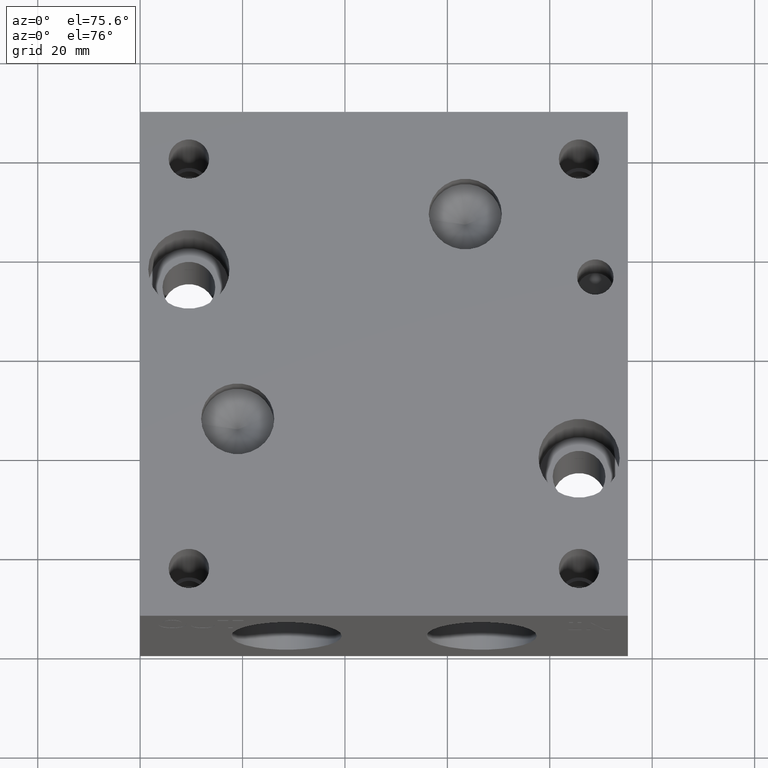
[diagram: clean part render]
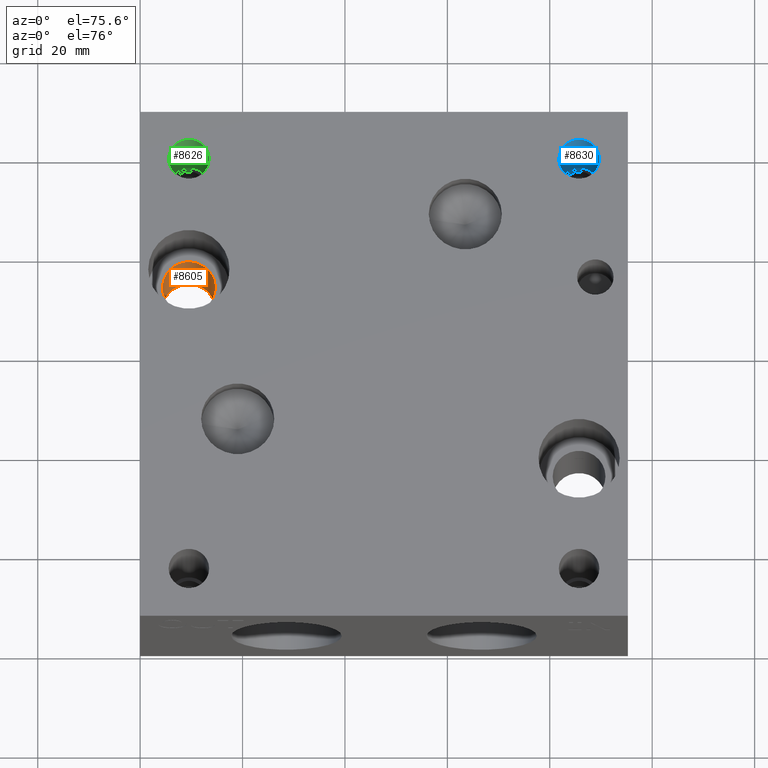
[diagram: same view with three faces highlighted in distinct colors, each labeled with its STEP entity id]
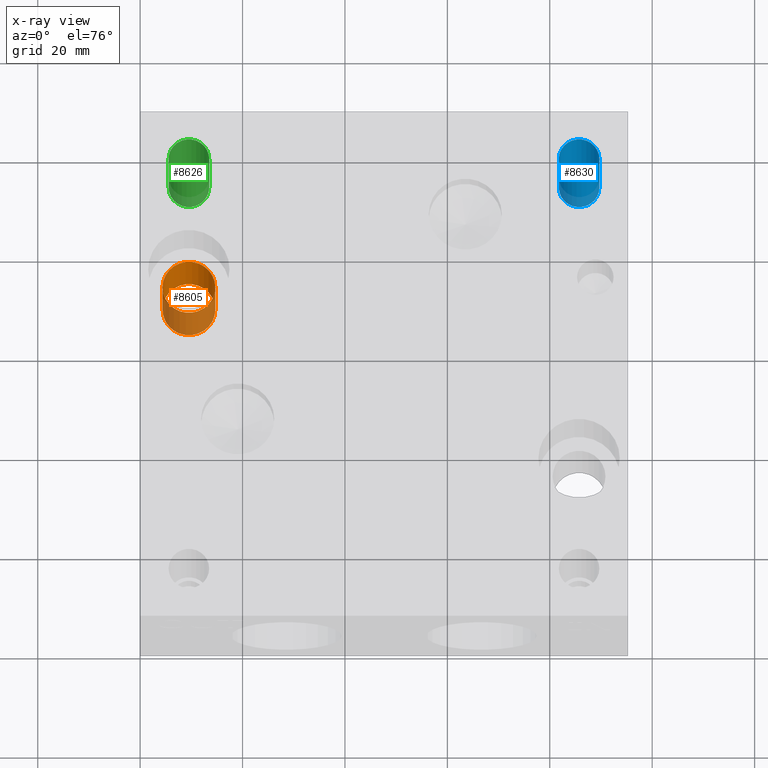
[diagram: x-ray of the same camera — body ghosted, the three highlighted faces saturated]
A machine part, auxiliary view with three faces highlighted in distinct colors.
The next image is the same camera in x-ray (body ghosted, the three faces saturated) — at least one of them is partly hidden behind the body in this view.
Their STEP definitions:

[orange] entity #8605 — the highlighted cylindrical surface (bore or boss wall) has radius 5.1562 mm, axis along (0, 0, 1).
#26=CYLINDRICAL_SURFACE('',#8931,5.1562);
#55=CIRCLE('',#8928,5.1562);
#57=CIRCLE('',#8932,5.1562);
#831=FACE_OUTER_BOUND('',#1305,.T.);
#1305=EDGE_LOOP('',(#7495,#7496,#7497,#7498));
#2171=LINE('',#14644,#3013);
#3013=VECTOR('',#10385,5.1562);
#4060=VERTEX_POINT('',#14636);
#4062=VERTEX_POINT('',#14643);
#5226=EDGE_CURVE('',#4060,#4060,#55,.T.);
#5229=EDGE_CURVE('',#4060,#4062,#2171,.T.);
#5230=EDGE_CURVE('',#4062,#4062,#57,.T.);
#7495=ORIENTED_EDGE('',*,*,#5226,.T.);
#7496=ORIENTED_EDGE('',*,*,#5229,.T.);
#7497=ORIENTED_EDGE('',*,*,#5230,.F.);
#7498=ORIENTED_EDGE('',*,*,#5229,.F.);
#8605=ADVANCED_FACE('',(#831),#26,.F.);
#8928=AXIS2_PLACEMENT_3D('',#14637,#10376,#10377);
#8931=AXIS2_PLACEMENT_3D('',#14642,#10383,#10384);
#8932=AXIS2_PLACEMENT_3D('',#14645,#10386,#10387);
#10376=DIRECTION('center_axis',(0.,0.,1.));
#10377=DIRECTION('ref_axis',(1.,0.,0.));
#10383=DIRECTION('center_axis',(0.,0.,1.));
#10384=DIRECTION('ref_axis',(1.,0.,0.));
#10385=DIRECTION('',(0.,0.,-1.));
#10386=DIRECTION('center_axis',(0.,0.,1.));
#10387=DIRECTION('ref_axis',(1.,0.,0.));
#14636=CARTESIAN_POINT('',(4.3688,69.85,17.526));
#14637=CARTESIAN_POINT('Origin',(9.525,69.85,17.526));
#14642=CARTESIAN_POINT('Origin',(9.525,69.85,-111.089717865865));
#14643=CARTESIAN_POINT('',(4.3688,69.85,0.));
#14644=CARTESIAN_POINT('',(4.3688,69.85,-111.089717865865));
#14645=CARTESIAN_POINT('Origin',(9.525,69.85,0.));

[blue] entity #8630 — the highlighted cylindrical surface (bore or boss wall) has radius 3.9624 mm, axis along (0, 0, 1).
#38=CYLINDRICAL_SURFACE('',#8998,3.9624);
#96=CIRCLE('',#8995,3.9624);
#97=CIRCLE('',#8996,3.9624);
#99=CIRCLE('',#8999,3.9624);
#100=CIRCLE('',#9000,3.9624);
#856=FACE_OUTER_BOUND('',#1335,.T.);
#1335=EDGE_LOOP('',(#7608,#7609,#7610,#7611,#7612,#7613));
#2191=LINE('',#14784,#3033);
#3033=VECTOR('',#10543,3.9624);
#4109=VERTEX_POINT('',#14773);
#4110=VERTEX_POINT('',#14774);
#4112=VERTEX_POINT('',#14780);
#4113=VERTEX_POINT('',#14781);
#5288=EDGE_CURVE('',#4109,#4110,#96,.T.);
#5289=EDGE_CURVE('',#4110,#4109,#97,.T.);
#5291=EDGE_CURVE('',#4112,#4113,#99,.T.);
#5292=EDGE_CURVE('',#4113,#4112,#100,.T.);
#5293=EDGE_CURVE('',#4113,#4110,#2191,.T.);
#7608=ORIENTED_EDGE('',*,*,#5291,.F.);
#7609=ORIENTED_EDGE('',*,*,#5292,.F.);
#7610=ORIENTED_EDGE('',*,*,#5293,.T.);
#7611=ORIENTED_EDGE('',*,*,#5288,.F.);
#7612=ORIENTED_EDGE('',*,*,#5289,.F.);
#7613=ORIENTED_EDGE('',*,*,#5293,.F.);
#8630=ADVANCED_FACE('',(#856),#38,.F.);
#8995=AXIS2_PLACEMENT_3D('',#14775,#10531,#10532);
#8996=AXIS2_PLACEMENT_3D('',#14776,#10533,#10534);
#8998=AXIS2_PLACEMENT_3D('',#14779,#10537,#10538);
#8999=AXIS2_PLACEMENT_3D('',#14782,#10539,#10540);
#9000=AXIS2_PLACEMENT_3D('',#14783,#10541,#10542);
#10531=DIRECTION('center_axis',(0.,0.,1.));
#10532=DIRECTION('ref_axis',(1.,0.,0.));
#10533=DIRECTION('center_axis',(0.,0.,1.));
#10534=DIRECTION('ref_axis',(1.,0.,0.));
#10537=DIRECTION('center_axis',(0.,0.,1.));
#10538=DIRECTION('ref_axis',(1.,0.,0.));
#10539=DIRECTION('center_axis',(0.,0.,-1.));
#10540=DIRECTION('ref_axis',(1.,0.,0.));
#10541=DIRECTION('center_axis',(0.,0.,-1.));
#10542=DIRECTION('ref_axis',(1.,0.,0.));
#10543=DIRECTION('',(0.,0.,-1.));
#14773=CARTESIAN_POINT('',(89.6874,92.075,9.398));
#14774=CARTESIAN_POINT('',(81.7626,92.075,9.398));
#14775=CARTESIAN_POINT('Origin',(85.725,92.075,9.398));
#14776=CARTESIAN_POINT('Origin',(85.725,92.075,9.398));
#14779=CARTESIAN_POINT('Origin',(85.725,92.075,20.574));
#14780=CARTESIAN_POINT('',(89.6874,92.075,31.75));
#14781=CARTESIAN_POINT('',(81.7626,92.075,31.75));
#14782=CARTESIAN_POINT('Origin',(85.725,92.075,31.75));
#14783=CARTESIAN_POINT('Origin',(85.725,92.075,31.75));
#14784=CARTESIAN_POINT('',(81.7626,92.075,20.574));

[green] entity #8626 — the highlighted cylindrical surface (bore or boss wall) has radius 3.9624 mm, axis along (0, 0, 1).
#36=CYLINDRICAL_SURFACE('',#8987,3.9624);
#89=CIRCLE('',#8984,3.9624);
#90=CIRCLE('',#8985,3.9624);
#92=CIRCLE('',#8988,3.9624);
#93=CIRCLE('',#8989,3.9624);
#852=FACE_OUTER_BOUND('',#1330,.T.);
#1330=EDGE_LOOP('',(#7590,#7591,#7592,#7593,#7594,#7595));
#2188=LINE('',#14762,#3030);
#3030=VECTOR('',#10518,3.9624);
#4101=VERTEX_POINT('',#14751);
#4102=VERTEX_POINT('',#14752);
#4104=VERTEX_POINT('',#14758);
#4105=VERTEX_POINT('',#14759);
#5278=EDGE_CURVE('',#4101,#4102,#89,.T.);
#5279=EDGE_CURVE('',#4102,#4101,#90,.T.);
#5281=EDGE_CURVE('',#4104,#4105,#92,.T.);
#5282=EDGE_CURVE('',#4105,#4104,#93,.T.);
#5283=EDGE_CURVE('',#4105,#4102,#2188,.T.);
#7590=ORIENTED_EDGE('',*,*,#5281,.F.);
#7591=ORIENTED_EDGE('',*,*,#5282,.F.);
#7592=ORIENTED_EDGE('',*,*,#5283,.T.);
#7593=ORIENTED_EDGE('',*,*,#5278,.F.);
#7594=ORIENTED_EDGE('',*,*,#5279,.F.);
#7595=ORIENTED_EDGE('',*,*,#5283,.F.);
#8626=ADVANCED_FACE('',(#852),#36,.F.);
#8984=AXIS2_PLACEMENT_3D('',#14753,#10506,#10507);
#8985=AXIS2_PLACEMENT_3D('',#14754,#10508,#10509);
#8987=AXIS2_PLACEMENT_3D('',#14757,#10512,#10513);
#8988=AXIS2_PLACEMENT_3D('',#14760,#10514,#10515);
#8989=AXIS2_PLACEMENT_3D('',#14761,#10516,#10517);
#10506=DIRECTION('center_axis',(0.,0.,1.));
#10507=DIRECTION('ref_axis',(1.,0.,0.));
#10508=DIRECTION('center_axis',(0.,0.,1.));
#10509=DIRECTION('ref_axis',(1.,0.,0.));
#10512=DIRECTION('center_axis',(0.,0.,1.));
#10513=DIRECTION('ref_axis',(1.,0.,0.));
#10514=DIRECTION('center_axis',(0.,0.,-1.));
#10515=DIRECTION('ref_axis',(1.,0.,0.));
#10516=DIRECTION('center_axis',(0.,0.,-1.));
#10517=DIRECTION('ref_axis',(1.,0.,0.));
#10518=DIRECTION('',(0.,0.,-1.));
#14751=CARTESIAN_POINT('',(13.4874,92.075,9.398));
#14752=CARTESIAN_POINT('',(5.5626,92.075,9.398));
#14753=CARTESIAN_POINT('Origin',(9.525,92.075,9.398));
#14754=CARTESIAN_POINT('Origin',(9.525,92.075,9.398));
#14757=CARTESIAN_POINT('Origin',(9.525,92.075,20.574));
#14758=CARTESIAN_POINT('',(13.4874,92.075,31.75));
#14759=CARTESIAN_POINT('',(5.5626,92.075,31.75));
#14760=CARTESIAN_POINT('Origin',(9.525,92.075,31.75));
#14761=CARTESIAN_POINT('Origin',(9.525,92.075,31.75));
#14762=CARTESIAN_POINT('',(5.5626,92.075,20.574));